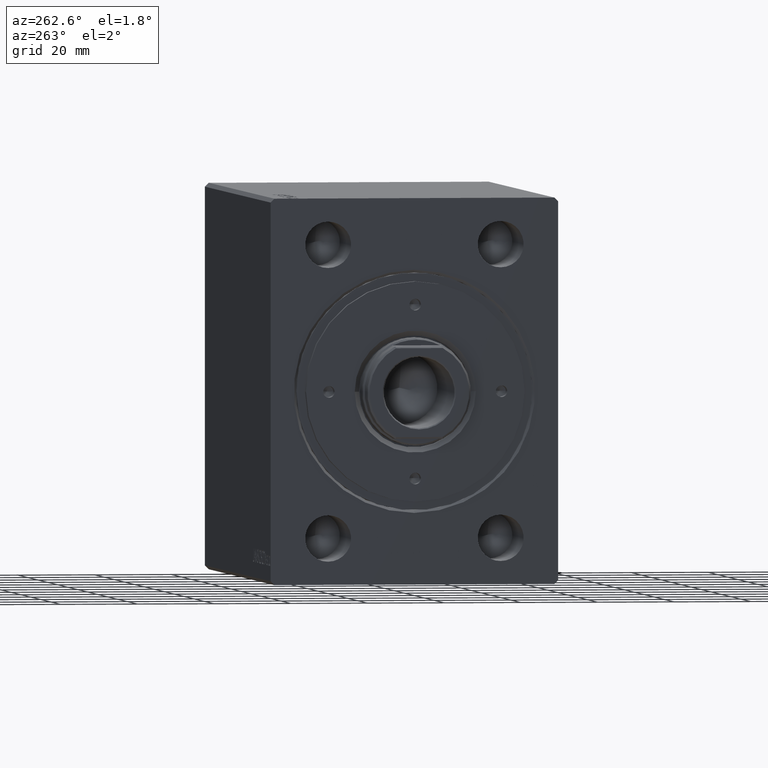
[diagram: clean part render]
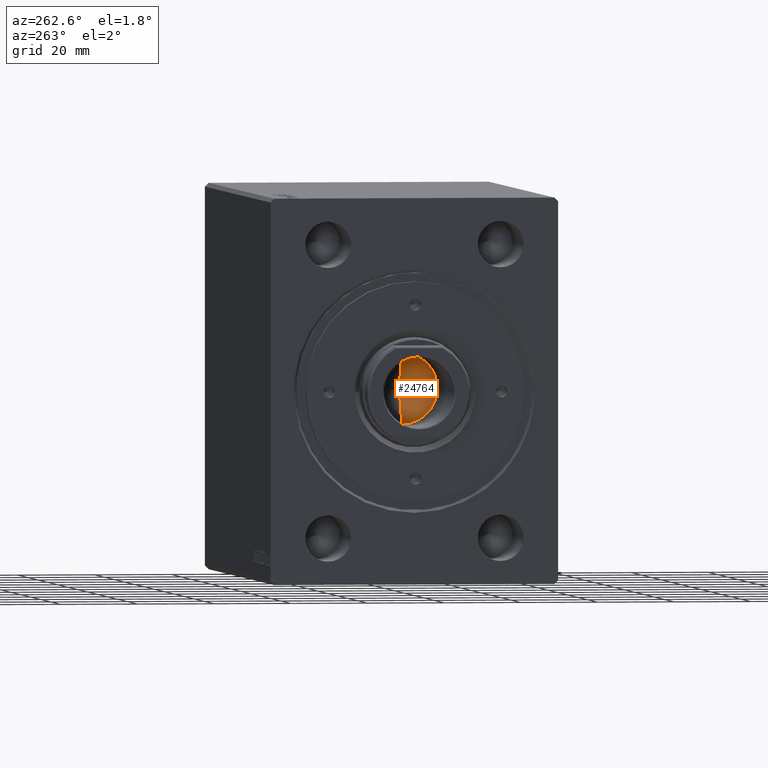
[diagram: same view with one face highlighted and labeled with its STEP entity id]
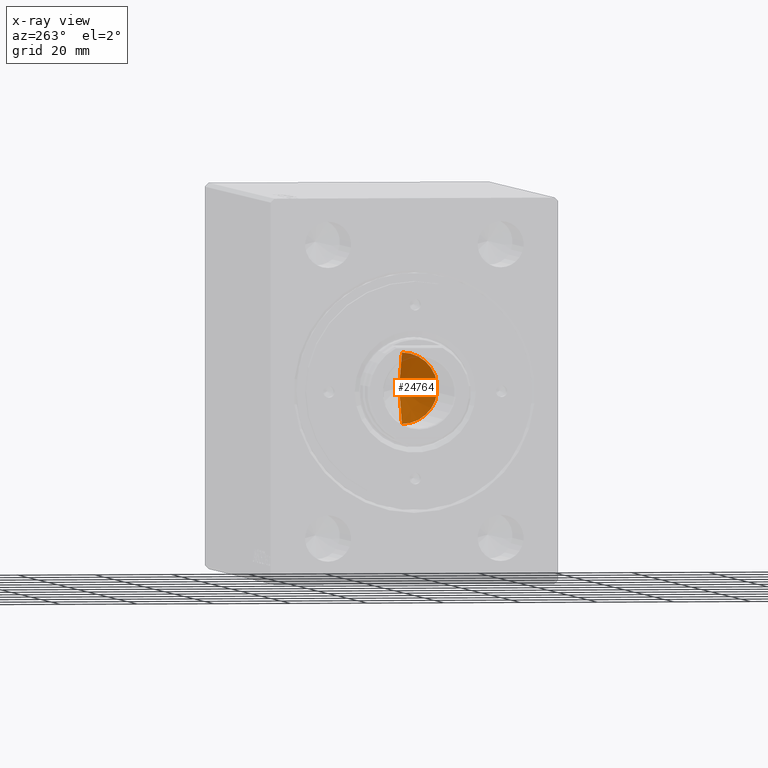
[diagram: x-ray of the same camera — body ghosted, the highlighted face saturated]
A machine part, auxiliary view. The second image highlights one B-rep face of the part: STEP entity #24764.
The next image is the same camera in x-ray: the body ghosted, the highlighted face saturated — about 4% of this face is hidden behind the body in this view.
In plain terms, the highlighted conical surface has half-angle 59 deg.
Its self-contained STEP definition (entity closure, byte-faithful):
#817 = EDGE_CURVE ( 'NONE', #31257, #26672, #40809, .T. ) ;
#1883 = ORIENTED_EDGE ( 'NONE', *, *, #12034, .T. ) ;
#2048 = LINE ( 'NONE', #15623, #28340 ) ;
#4101 = VECTOR ( 'NONE', #41472, 1000.000000000000000 ) ;
#6523 = CARTESIAN_POINT ( 'NONE',  ( 9.249999999999994671, 0.000000000000000000, 89.20000000000000284 ) ) ;
#6947 = CARTESIAN_POINT ( 'NONE',  ( -1.046994375366439223E-14, 0.000000000000000000, 83.64203927399506711 ) ) ;
#10381 = DIRECTION ( 'NONE',  ( -0.000000000000000000, -0.000000000000000000, 1.000000000000000000 ) ) ;
#10425 = DIRECTION ( 'NONE',  ( -0.000000000000000000, -0.000000000000000000, 1.000000000000000000 ) ) ;
#10821 = CARTESIAN_POINT ( 'NONE',  ( 0.000000000000000000, 0.000000000000000000, 89.20000000000000284 ) ) ;
#12034 = EDGE_CURVE ( 'NONE', #31257, #27115, #2048, .T. ) ;
#13980 = CARTESIAN_POINT ( 'NONE',  ( 0.000000000000000000, 0.000000000000000000, 89.20000000000000284 ) ) ;
#14114 = CARTESIAN_POINT ( 'NONE',  ( 9.249999999999994671, 0.000000000000000000, 89.20000000000000284 ) ) ;
#14495 = AXIS2_PLACEMENT_3D ( 'NONE', #10821, #10381, #30626 ) ;
#15623 = CARTESIAN_POINT ( 'NONE',  ( -9.249999999999994671, 1.132798289211300909E-15, 89.20000000000000284 ) ) ;
#15744 = AXIS2_PLACEMENT_3D ( 'NONE', #13980, #10425, #23769 ) ;
#19292 = CONICAL_SURFACE ( 'NONE', #15744, 9.249999999999994671, 1.029744258676653423 ) ;
#20641 = FACE_OUTER_BOUND ( 'NONE', #43942, .T. ) ;
#23769 = DIRECTION ( 'NONE',  ( 1.000000000000000000, 0.000000000000000000, 0.000000000000000000 ) ) ;
#24764 = ADVANCED_FACE ( 'NONE', ( #20641 ), #19292, .F. ) ;
#26524 = DIRECTION ( 'NONE',  ( -0.8571673007021117785, 1.049727191138617956E-16, 0.5150380749100550437 ) ) ;
#26672 = VERTEX_POINT ( 'NONE', #6523 ) ;
#27115 = VERTEX_POINT ( 'NONE', #29543 ) ;
#28340 = VECTOR ( 'NONE', #26524, 1000.000000000000000 ) ;
#28997 = ORIENTED_EDGE ( 'NONE', *, *, #817, .F. ) ;
#29543 = CARTESIAN_POINT ( 'NONE',  ( -9.249999999999994671, 1.132798289211300909E-15, 89.20000000000000284 ) ) ;
#29828 = EDGE_CURVE ( 'NONE', #27115, #26672, #30819, .T. ) ;
#30626 = DIRECTION ( 'NONE',  ( 1.000000000000000000, 0.000000000000000000, 0.000000000000000000 ) ) ;
#30819 = CIRCLE ( 'NONE', #14495, 9.249999999999994671 ) ;
#31257 = VERTEX_POINT ( 'NONE', #6947 ) ;
#37952 = ORIENTED_EDGE ( 'NONE', *, *, #29828, .T. ) ;
#40809 = LINE ( 'NONE', #14114, #4101 ) ;
#41472 = DIRECTION ( 'NONE',  ( 0.8571673007021117785, 0.000000000000000000, 0.5150380749100550437 ) ) ;
#43942 = EDGE_LOOP ( 'NONE', ( #28997, #1883, #37952 ) ) ;